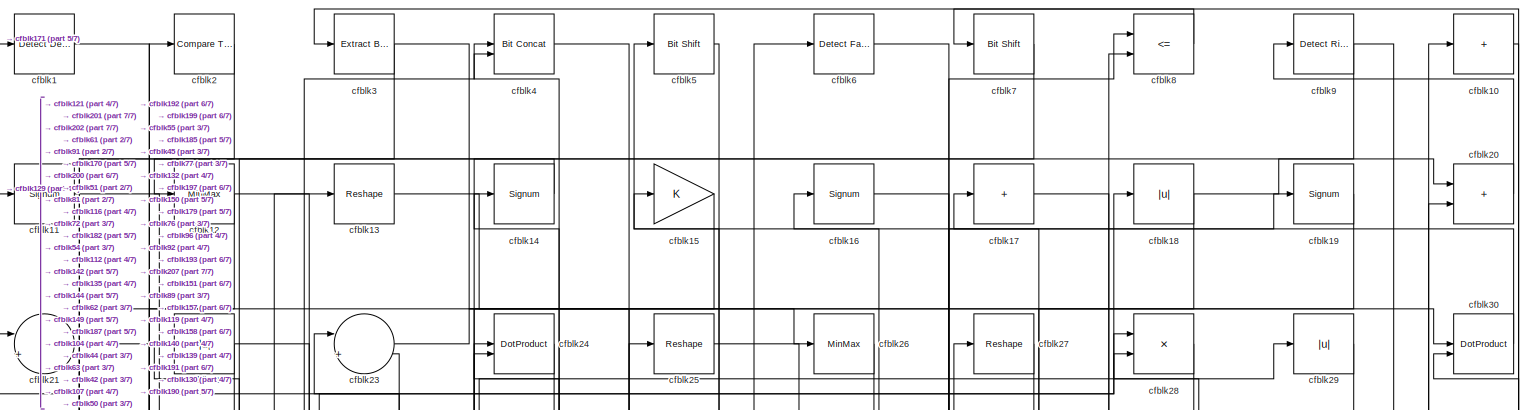
[diagram: root canvas - part 1/7, full width, top band]
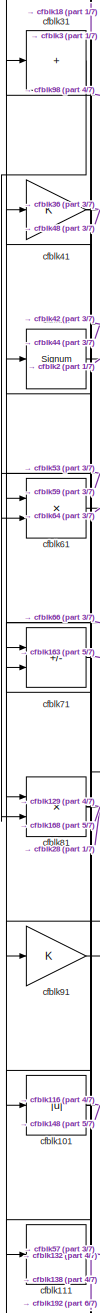
[diagram: root canvas - part 2/7, middle left region]
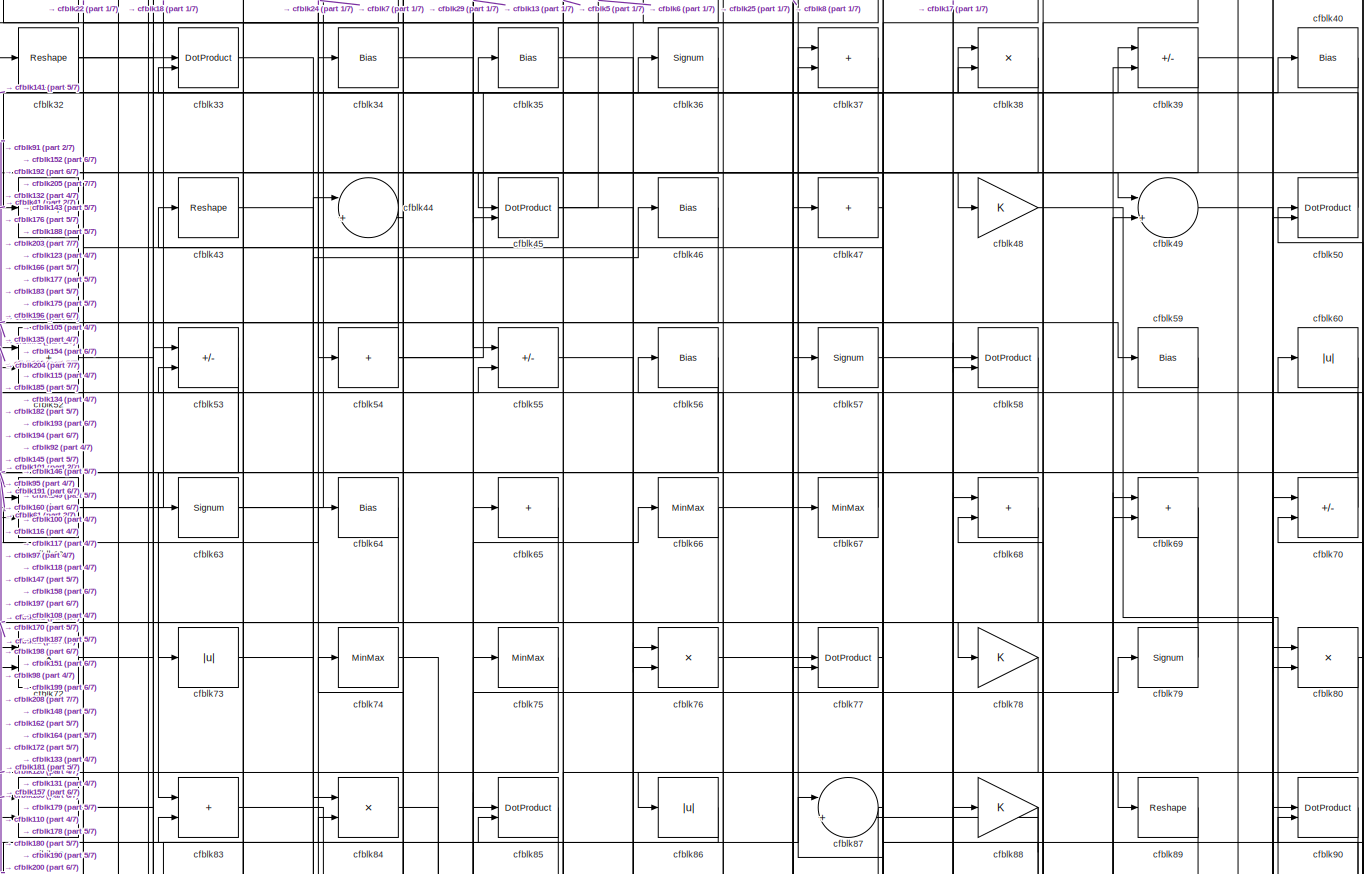
[diagram: root canvas - part 3/7, full width, top band]
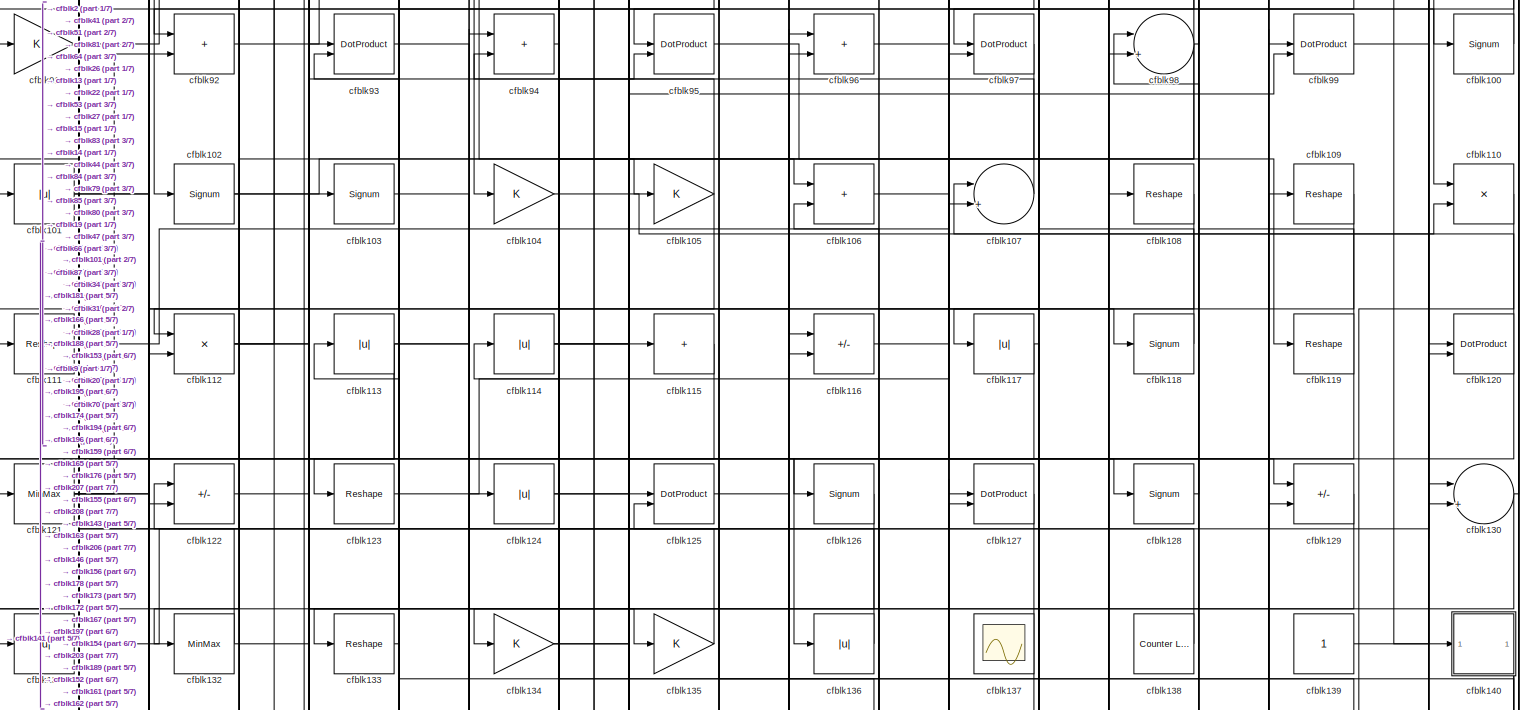
[diagram: root canvas - part 4/7, full width, middle band]
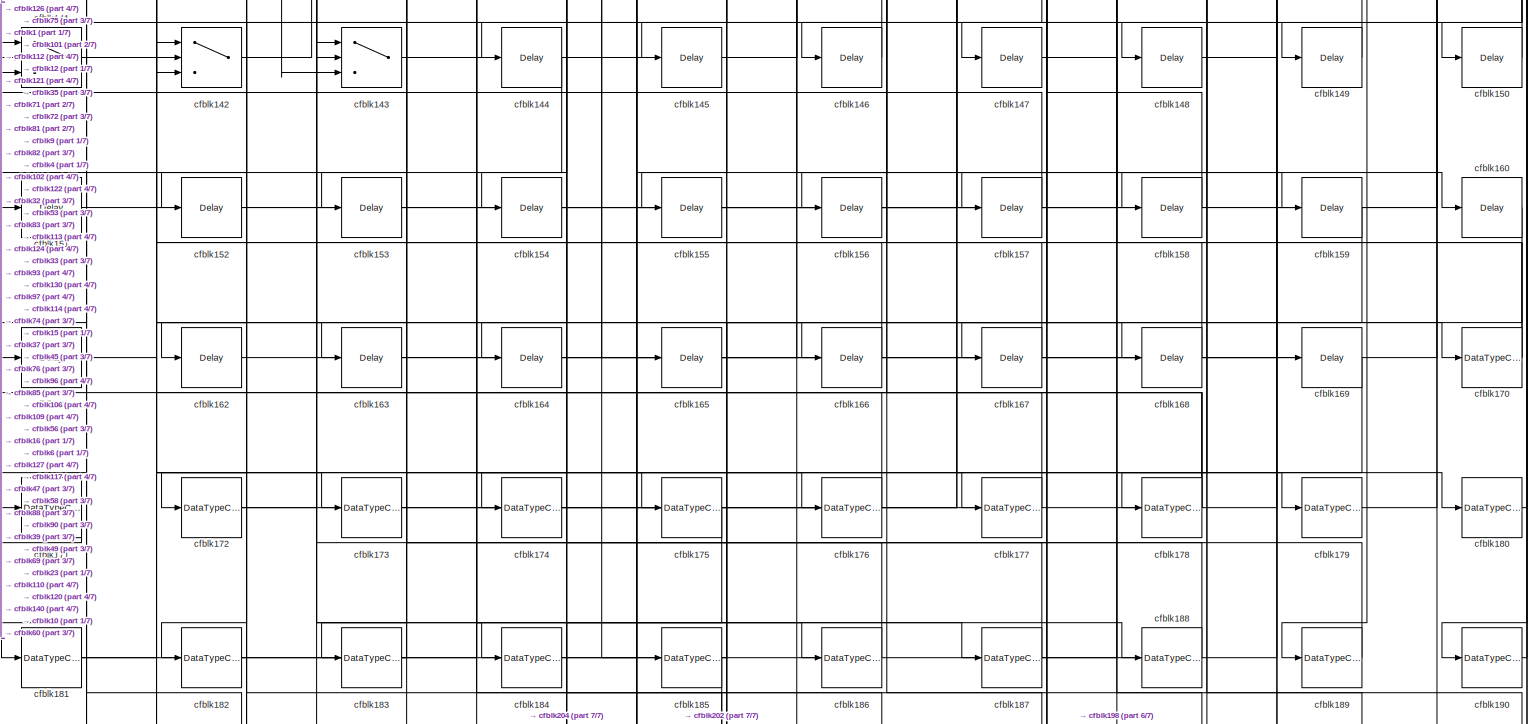
[diagram: root canvas - part 5/7, full width, bottom band]
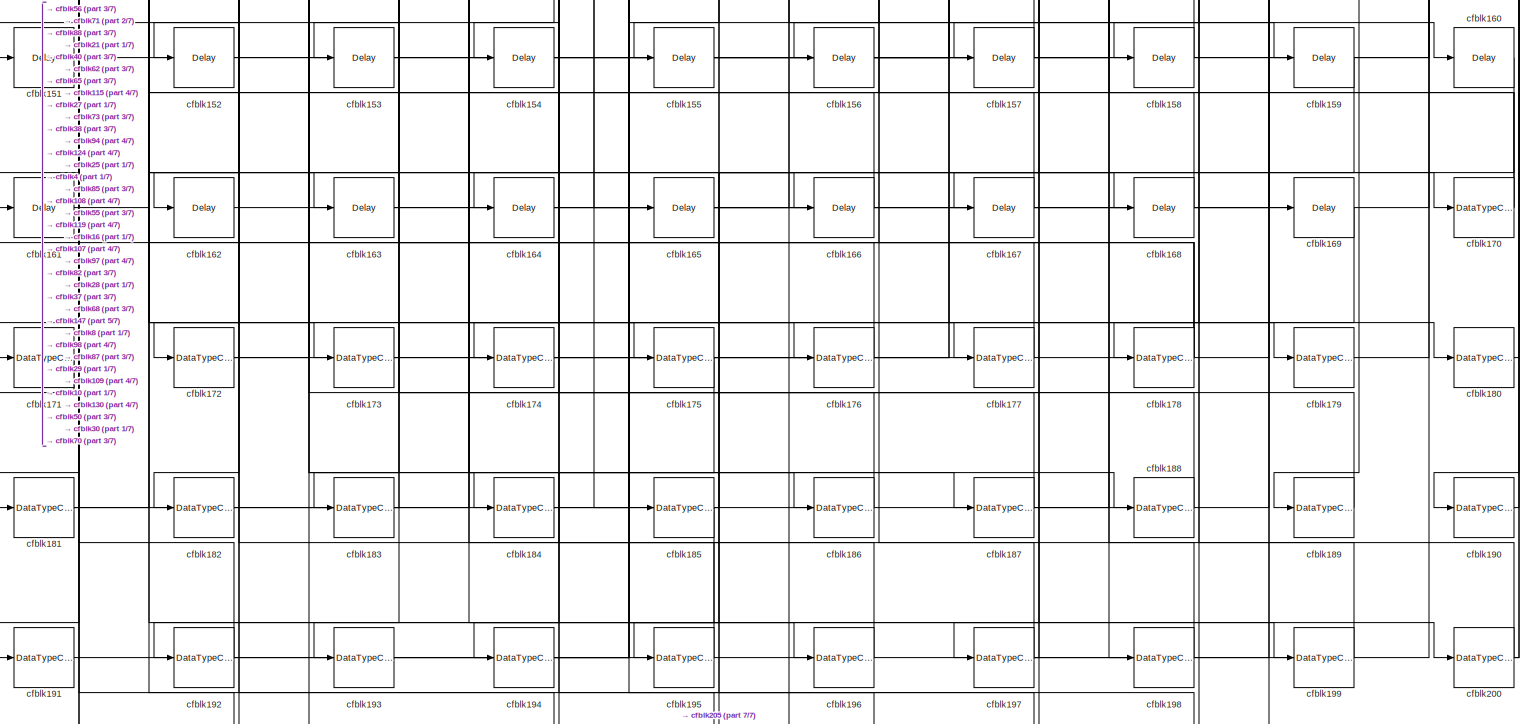
[diagram: root canvas - part 6/7, full width, bottom band]
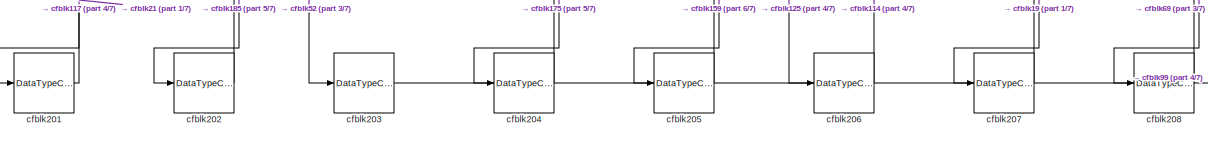
[diagram: root canvas - part 7/7, full width, bottom band]
MODEL slx_1a4f8adc5c76
KIND model
CONFIG AbsTol = auto
CONFIG EnableMultiTasking = off
CONFIG FixedStep = auto
CONFIG MaxStep = auto
CONFIG MinStep = auto
CONFIG RelTol = 1e-3
CONFIG SampleTimeConstraint = Unconstrained
CONFIG SolverName = VariableStepAuto
CONFIG StartTime = 0.0
CONFIG StopTime = 10.0
BLOCK [Reference] cfblk1  REF=simulink/Logic and Bit
Operations/Detect
Decrease
  LibrarySourceBlock = hdlsllib/Logic and Bit\nOperations/Detect\nDecrease
  SourceBlock = simulink/Logic and Bit\nOperations/Detect\nDecrease
  SourceType = Detect Decrease
BLOCK [Sum] cfblk10
  IconShape = rectangular
  Inputs = +
BLOCK [Signum] cfblk100
BLOCK [Abs] cfblk101
  SaturateOnIntegerOverflow = off
BLOCK [Signum] cfblk102
BLOCK [Signum] cfblk103
BLOCK [Gain] cfblk104
BLOCK [Gain] cfblk105
BLOCK [Sum] cfblk106
  IconShape = rectangular
BLOCK [Sum] cfblk107
  Inputs = |++
BLOCK [Reshape] cfblk108
BLOCK [Reshape] cfblk109
BLOCK [Signum] cfblk11
BLOCK [Product] cfblk110
  Inputs = */
  RndMeth = Zero
  SaturateOnIntegerOverflow = on
BLOCK [Reshape] cfblk111
BLOCK [Product] cfblk112
  Inputs = */
  RndMeth = Zero
  SaturateOnIntegerOverflow = on
BLOCK [Abs] cfblk113
  SaturateOnIntegerOverflow = off
BLOCK [Abs] cfblk114
  SaturateOnIntegerOverflow = off
BLOCK [Sum] cfblk115
  IconShape = rectangular
  Inputs = +
BLOCK [Sum] cfblk116
  IconShape = rectangular
  Inputs = +-
BLOCK [Abs] cfblk117
  SaturateOnIntegerOverflow = off
BLOCK [Signum] cfblk118
BLOCK [Reshape] cfblk119
BLOCK [MinMax] cfblk12
BLOCK [DotProduct] cfblk120
  OutDataTypeStr = Inherit: Inherit via internal rule
BLOCK [MinMax] cfblk121
BLOCK [Sum] cfblk122
  IconShape = rectangular
  Inputs = +-
BLOCK [Reshape] cfblk123
BLOCK [Abs] cfblk124
  SaturateOnIntegerOverflow = off
BLOCK [DotProduct] cfblk125
  OutDataTypeStr = Inherit: Inherit via internal rule
BLOCK [Signum] cfblk126
BLOCK [DotProduct] cfblk127
  OutDataTypeStr = Inherit: Inherit via internal rule
BLOCK [Signum] cfblk128
BLOCK [Sum] cfblk129
  IconShape = rectangular
  Inputs = +-
BLOCK [Reshape] cfblk13
BLOCK [Sum] cfblk130
  Inputs = |++
BLOCK [Abs] cfblk131
  SaturateOnIntegerOverflow = off
BLOCK [MinMax] cfblk132
BLOCK [Reshape] cfblk133
BLOCK [Gain] cfblk134
BLOCK [Gain] cfblk135
BLOCK [Abs] cfblk136
  SaturateOnIntegerOverflow = off
BLOCK [Scope] cfblk137
  Floating = on
  NumInputPorts = 1
  ScopeSpecificationString = Simulink.scopes.TimeScopeBlockCfg('CurrentConfiguration', extmgr.ConfigurationSet(extmgr.Configuration('Core','General UI',true,'FigureColor',[0.156862745098039 0.156862745098039 0.156862745098039]),extmgr.Configuration('Core','Source UI',true),extmgr.Configuration('Sources','WiredSimulink',true,'DataLoggingVariableName','ScopeData1','DataLoggingSaveFormat','StructureWithTime','DataLoggingLimitDat...<+2713ch>
BLOCK [Reference] cfblk138  REF=hdlsllib/Sources/Counter
Limited
  SourceBlock = hdlsllib/Sources/Counter\nLimited
  SourceType = Counter Limited
BLOCK [Constant] cfblk139
  SampleTime = -1
BLOCK [Signum] cfblk14
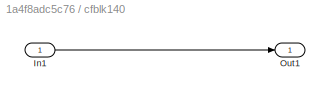
BLOCK [SubSystem] cfblk140
  LibrarySourceBlock = hdlsllib/Ports &\nSubsystems/Subsystem
BLOCK [Inport] cfblk140/In1
BLOCK [Outport] cfblk140/Out1
BLOCK [Switch] cfblk141
  InputSameDT = off
  SaturateOnIntegerOverflow = off
BLOCK [Switch] cfblk142
  InputSameDT = off
  SaturateOnIntegerOverflow = off
BLOCK [Switch] cfblk143
  InputSameDT = off
  SaturateOnIntegerOverflow = off
BLOCK [Delay] cfblk144
  InputPortMap = u0
  SampleTime = 1
BLOCK [Delay] cfblk145
  InputPortMap = u0
  SampleTime = 1
BLOCK [Delay] cfblk146
  InputPortMap = u0
  SampleTime = 1
BLOCK [Delay] cfblk147
  InputPortMap = u0
  SampleTime = 1
BLOCK [Delay] cfblk148
  InputPortMap = u0
  SampleTime = 1
BLOCK [Delay] cfblk149
  InputPortMap = u0
  SampleTime = 1
BLOCK [Gain] cfblk15
BLOCK [Delay] cfblk150
  InputPortMap = u0
  SampleTime = 1
BLOCK [Delay] cfblk151
  InputPortMap = u0
  SampleTime = 1
BLOCK [Delay] cfblk152
  InputPortMap = u0
  SampleTime = 1
BLOCK [Delay] cfblk153
  InputPortMap = u0
  SampleTime = 1
BLOCK [Delay] cfblk154
  InputPortMap = u0
  SampleTime = 1
BLOCK [Delay] cfblk155
  InputPortMap = u0
  SampleTime = 1
BLOCK [Delay] cfblk156
  InputPortMap = u0
  SampleTime = 1
BLOCK [Delay] cfblk157
  InputPortMap = u0
  SampleTime = 1
BLOCK [Delay] cfblk158
  InputPortMap = u0
  SampleTime = 1
BLOCK [Delay] cfblk159
  InputPortMap = u0
  SampleTime = 1
BLOCK [Signum] cfblk16
BLOCK [Delay] cfblk160
  InputPortMap = u0
  SampleTime = 1
BLOCK [Delay] cfblk161
  InputPortMap = u0
  SampleTime = 1
BLOCK [Delay] cfblk162
  InputPortMap = u0
  SampleTime = 1
BLOCK [Delay] cfblk163
  InputPortMap = u0
  SampleTime = 1
BLOCK [Delay] cfblk164
  InputPortMap = u0
  SampleTime = 1
BLOCK [Delay] cfblk165
  InputPortMap = u0
  SampleTime = 1
BLOCK [Delay] cfblk166
  InputPortMap = u0
  SampleTime = 1
BLOCK [Delay] cfblk167
  InputPortMap = u0
  SampleTime = 1
BLOCK [Delay] cfblk168
  InputPortMap = u0
  SampleTime = 1
BLOCK [Delay] cfblk169
  InputPortMap = u0
  SampleTime = 1
BLOCK [Sum] cfblk17
  IconShape = rectangular
  Inputs = +
BLOCK [DataTypeConversion] cfblk170
  RndMeth = Floor
  SaturateOnIntegerOverflow = off
BLOCK [DataTypeConversion] cfblk171
  OutDataTypeStr = uint8
  RndMeth = Floor
  SaturateOnIntegerOverflow = off
BLOCK [DataTypeConversion] cfblk172
  RndMeth = Floor
  SaturateOnIntegerOverflow = off
BLOCK [DataTypeConversion] cfblk173
  OutDataTypeStr = uint8
  RndMeth = Floor
  SaturateOnIntegerOverflow = off
BLOCK [DataTypeConversion] cfblk174
  OutDataTypeStr = uint8
  RndMeth = Floor
  SaturateOnIntegerOverflow = off
BLOCK [DataTypeConversion] cfblk175
  OutDataTypeStr = uint8
  RndMeth = Floor
  SaturateOnIntegerOverflow = off
BLOCK [DataTypeConversion] cfblk176
  OutDataTypeStr = uint8
  RndMeth = Floor
  SaturateOnIntegerOverflow = off
BLOCK [DataTypeConversion] cfblk177
  OutDataTypeStr = uint8
  RndMeth = Floor
  SaturateOnIntegerOverflow = off
BLOCK [DataTypeConversion] cfblk178
  RndMeth = Floor
  SaturateOnIntegerOverflow = off
BLOCK [DataTypeConversion] cfblk179
  OutDataTypeStr = uint8
  RndMeth = Floor
  SaturateOnIntegerOverflow = off
BLOCK [Abs] cfblk18
  SaturateOnIntegerOverflow = off
BLOCK [DataTypeConversion] cfblk180
  OutDataTypeStr = uint8
  RndMeth = Floor
  SaturateOnIntegerOverflow = off
BLOCK [DataTypeConversion] cfblk181
  RndMeth = Floor
  SaturateOnIntegerOverflow = off
BLOCK [DataTypeConversion] cfblk182
  OutDataTypeStr = uint8
  RndMeth = Floor
  SaturateOnIntegerOverflow = off
BLOCK [DataTypeConversion] cfblk183
  OutDataTypeStr = uint8
  RndMeth = Floor
  SaturateOnIntegerOverflow = off
BLOCK [DataTypeConversion] cfblk184
  OutDataTypeStr = uint8
  RndMeth = Floor
  SaturateOnIntegerOverflow = off
BLOCK [DataTypeConversion] cfblk185
  RndMeth = Floor
  SaturateOnIntegerOverflow = off
BLOCK [DataTypeConversion] cfblk186
  OutDataTypeStr = uint8
  RndMeth = Floor
  SaturateOnIntegerOverflow = off
BLOCK [DataTypeConversion] cfblk187
  RndMeth = Floor
  SaturateOnIntegerOverflow = off
BLOCK [DataTypeConversion] cfblk188
  OutDataTypeStr = uint8
  RndMeth = Floor
  SaturateOnIntegerOverflow = off
BLOCK [DataTypeConversion] cfblk189
  OutDataTypeStr = uint8
  RndMeth = Floor
  SaturateOnIntegerOverflow = off
BLOCK [Signum] cfblk19
BLOCK [DataTypeConversion] cfblk190
  OutDataTypeStr = uint8
  RndMeth = Floor
  SaturateOnIntegerOverflow = off
BLOCK [DataTypeConversion] cfblk191
  OutDataTypeStr = uint8
  RndMeth = Floor
  SaturateOnIntegerOverflow = off
BLOCK [DataTypeConversion] cfblk192
  RndMeth = Floor
  SaturateOnIntegerOverflow = off
BLOCK [DataTypeConversion] cfblk193
  OutDataTypeStr = uint8
  RndMeth = Floor
  SaturateOnIntegerOverflow = off
BLOCK [DataTypeConversion] cfblk194
  OutDataTypeStr = uint8
  RndMeth = Floor
  SaturateOnIntegerOverflow = off
BLOCK [DataTypeConversion] cfblk195
  OutDataTypeStr = uint8
  RndMeth = Floor
  SaturateOnIntegerOverflow = off
BLOCK [DataTypeConversion] cfblk196
  OutDataTypeStr = uint8
  RndMeth = Floor
  SaturateOnIntegerOverflow = off
BLOCK [DataTypeConversion] cfblk197
  RndMeth = Floor
  SaturateOnIntegerOverflow = off
BLOCK [DataTypeConversion] cfblk198
  OutDataTypeStr = uint8
  RndMeth = Floor
  SaturateOnIntegerOverflow = off
BLOCK [DataTypeConversion] cfblk199
  OutDataTypeStr = uint8
  RndMeth = Floor
  SaturateOnIntegerOverflow = off
BLOCK [Reference] cfblk2  REF=hdlsllib/Logic and Bit
Operations/Compare
To Constant
  SourceBlock = hdlsllib/Logic and Bit\nOperations/Compare\nTo Constant
  SourceType = Compare To Constant
BLOCK [Sum] cfblk20
  IconShape = rectangular
BLOCK [DataTypeConversion] cfblk200
  RndMeth = Floor
  SaturateOnIntegerOverflow = off
BLOCK [DataTypeConversion] cfblk201
  OutDataTypeStr = uint8
  RndMeth = Floor
  SaturateOnIntegerOverflow = off
BLOCK [DataTypeConversion] cfblk202
  OutDataTypeStr = uint8
  RndMeth = Floor
  SaturateOnIntegerOverflow = off
BLOCK [DataTypeConversion] cfblk203
  OutDataTypeStr = uint8
  RndMeth = Floor
  SaturateOnIntegerOverflow = off
BLOCK [DataTypeConversion] cfblk204
  OutDataTypeStr = uint8
  RndMeth = Floor
  SaturateOnIntegerOverflow = off
BLOCK [DataTypeConversion] cfblk205
  OutDataTypeStr = uint8
  RndMeth = Floor
  SaturateOnIntegerOverflow = off
BLOCK [DataTypeConversion] cfblk206
  OutDataTypeStr = uint8
  RndMeth = Floor
  SaturateOnIntegerOverflow = off
BLOCK [DataTypeConversion] cfblk207
  OutDataTypeStr = uint8
  RndMeth = Floor
  SaturateOnIntegerOverflow = off
BLOCK [DataTypeConversion] cfblk208
  OutDataTypeStr = uint8
  RndMeth = Floor
  SaturateOnIntegerOverflow = off
BLOCK [Sum] cfblk21
  Inputs = |++
BLOCK [Abs] cfblk22
  SaturateOnIntegerOverflow = off
BLOCK [Sum] cfblk23
  Inputs = |++
BLOCK [DotProduct] cfblk24
  OutDataTypeStr = Inherit: Inherit via internal rule
BLOCK [Reshape] cfblk25
BLOCK [MinMax] cfblk26
BLOCK [Reshape] cfblk27
BLOCK [Product] cfblk28
  Inputs = */
  RndMeth = Zero
  SaturateOnIntegerOverflow = on
BLOCK [Abs] cfblk29
  SaturateOnIntegerOverflow = off
BLOCK [Reference] cfblk3  REF=simulink/Logic and Bit
Operations/Extract Bits
  LibrarySourceBlock = hdlsllib/Logic and Bit\nOperations/Extract Bits
  SourceBlock = simulink/Logic and Bit\nOperations/Extract Bits
  SourceType = Extract Bits
BLOCK [DotProduct] cfblk30
  OutDataTypeStr = Inherit: Inherit via internal rule
BLOCK [Sum] cfblk31
  IconShape = rectangular
  Inputs = +
BLOCK [Reshape] cfblk32
BLOCK [DotProduct] cfblk33
  OutDataTypeStr = Inherit: Inherit via internal rule
BLOCK [Bias] cfblk34
  Bias = 0.0
  SaturateOnIntegerOverflow = off
BLOCK [Bias] cfblk35
  Bias = 0.0
  SaturateOnIntegerOverflow = off
BLOCK [Signum] cfblk36
BLOCK [Sum] cfblk37
  IconShape = rectangular
BLOCK [Product] cfblk38
  Inputs = */
  RndMeth = Zero
  SaturateOnIntegerOverflow = on
BLOCK [Sum] cfblk39
  IconShape = rectangular
  Inputs = +-
BLOCK [Reference] cfblk4  REF=hdlsllib/Logic and Bit
Operations/Bit Concat
  SourceBlock = hdlsllib/Logic and Bit\nOperations/Bit Concat
  SourceType = Bit Concat
BLOCK [Bias] cfblk40
  Bias = 0.0
  SaturateOnIntegerOverflow = off
BLOCK [Gain] cfblk41
BLOCK [Reshape] cfblk42
BLOCK [Reshape] cfblk43
BLOCK [Sum] cfblk44
  Inputs = |++
BLOCK [DotProduct] cfblk45
  OutDataTypeStr = Inherit: Inherit via internal rule
BLOCK [Bias] cfblk46
  Bias = 0.0
  SaturateOnIntegerOverflow = off
BLOCK [Sum] cfblk47
  IconShape = rectangular
  Inputs = +
BLOCK [Gain] cfblk48
BLOCK [Sum] cfblk49
  Inputs = |++
BLOCK [Reference] cfblk5  REF=hdlsllib/Logic and Bit
Operations/Bit Shift
  SourceBlock = hdlsllib/Logic and Bit\nOperations/Bit Shift
  SourceType = Bit Shift
BLOCK [DotProduct] cfblk50
  OutDataTypeStr = Inherit: Inherit via internal rule
BLOCK [Signum] cfblk51
BLOCK [Sum] cfblk52
  IconShape = rectangular
BLOCK [Sum] cfblk53
  IconShape = rectangular
  Inputs = +-
BLOCK [Sum] cfblk54
  IconShape = rectangular
  Inputs = +
BLOCK [Sum] cfblk55
  IconShape = rectangular
  Inputs = +-
BLOCK [Bias] cfblk56
  Bias = 0.0
  SaturateOnIntegerOverflow = off
BLOCK [Signum] cfblk57
BLOCK [DotProduct] cfblk58
  OutDataTypeStr = Inherit: Inherit via internal rule
BLOCK [Bias] cfblk59
  Bias = 0.0
  SaturateOnIntegerOverflow = off
BLOCK [Reference] cfblk6  REF=hdlsllib/Logic and Bit
Operations/Detect Fall
Nonpositive
  SourceBlock = hdlsllib/Logic and Bit\nOperations/Detect Fall\nNonpositive
  SourceType = Detect Fall Nonpositive
BLOCK [Abs] cfblk60
  SaturateOnIntegerOverflow = off
BLOCK [Product] cfblk61
  Inputs = */
  RndMeth = Zero
  SaturateOnIntegerOverflow = on
BLOCK [Sum] cfblk62
  IconShape = rectangular
  Inputs = +-
BLOCK [Signum] cfblk63
BLOCK [Bias] cfblk64
  Bias = 0.0
  SaturateOnIntegerOverflow = off
BLOCK [Sum] cfblk65
  IconShape = rectangular
  Inputs = +
BLOCK [MinMax] cfblk66
BLOCK [MinMax] cfblk67
BLOCK [Sum] cfblk68
  IconShape = rectangular
BLOCK [Sum] cfblk69
  IconShape = rectangular
BLOCK [Reference] cfblk7  REF=hdlsllib/Logic and Bit
Operations/Bit Shift
  SourceBlock = hdlsllib/Logic and Bit\nOperations/Bit Shift
  SourceType = Bit Shift
BLOCK [Sum] cfblk70
  IconShape = rectangular
  Inputs = +-
BLOCK [Sum] cfblk71
  IconShape = rectangular
  Inputs = +-
BLOCK [Product] cfblk72
  Inputs = */
  RndMeth = Zero
  SaturateOnIntegerOverflow = on
BLOCK [Abs] cfblk73
  SaturateOnIntegerOverflow = off
BLOCK [MinMax] cfblk74
BLOCK [MinMax] cfblk75
BLOCK [Product] cfblk76
  Inputs = */
  RndMeth = Zero
  SaturateOnIntegerOverflow = on
BLOCK [DotProduct] cfblk77
  OutDataTypeStr = Inherit: Inherit via internal rule
BLOCK [Gain] cfblk78
BLOCK [Signum] cfblk79
BLOCK [RelationalOperator] cfblk8
  InputSameDT = off
  Operator = <=
  OutDataTypeStr = boolean
BLOCK [Product] cfblk80
  Inputs = */
  RndMeth = Zero
  SaturateOnIntegerOverflow = on
BLOCK [Product] cfblk81
  Inputs = */
  RndMeth = Zero
  SaturateOnIntegerOverflow = on
BLOCK [Product] cfblk82
  Inputs = */
  RndMeth = Zero
  SaturateOnIntegerOverflow = on
BLOCK [Sum] cfblk83
  IconShape = rectangular
BLOCK [Product] cfblk84
  Inputs = */
  RndMeth = Zero
  SaturateOnIntegerOverflow = on
BLOCK [DotProduct] cfblk85
  OutDataTypeStr = Inherit: Inherit via internal rule
BLOCK [Abs] cfblk86
  SaturateOnIntegerOverflow = off
BLOCK [Sum] cfblk87
  Inputs = |++
BLOCK [Gain] cfblk88
BLOCK [Reshape] cfblk89
BLOCK [Reference] cfblk9  REF=hdlsllib/Logic and Bit
Operations/Detect Rise
Positive
  SourceBlock = hdlsllib/Logic and Bit\nOperations/Detect Rise\nPositive
  SourceType = Detect Rise Positive
BLOCK [DotProduct] cfblk90
  OutDataTypeStr = Inherit: Inherit via internal rule
BLOCK [Gain] cfblk91
BLOCK [Sum] cfblk92
  IconShape = rectangular
BLOCK [DotProduct] cfblk93
  OutDataTypeStr = Inherit: Inherit via internal rule
BLOCK [Sum] cfblk94
  IconShape = rectangular
BLOCK [DotProduct] cfblk95
  OutDataTypeStr = Inherit: Inherit via internal rule
BLOCK [Sum] cfblk96
  IconShape = rectangular
BLOCK [DotProduct] cfblk97
  OutDataTypeStr = Inherit: Inherit via internal rule
BLOCK [Sum] cfblk98
  Inputs = |++
BLOCK [DotProduct] cfblk99
  OutDataTypeStr = Inherit: Inherit via internal rule
LINE cfblk100:1 -> cfblk43:1
NET cfblk101:1 -> cfblk116:2, cfblk148:1
NET cfblk102:1 -> cfblk106:1, cfblk184:1
LINE cfblk103:1 -> cfblk129:1
LINE cfblk104:1 -> cfblk110:2
NET cfblk105:1 -> cfblk122:2, cfblk44:2
LINE cfblk106:1 -> cfblk128:1
LINE cfblk107:1 -> cfblk14:1
LINE cfblk108:1 -> cfblk155:1
LINE cfblk109:1 -> cfblk146:1
LINE cfblk10:1 -> cfblk190:1
LINE cfblk110:1 -> cfblk189:1
LINE cfblk111:1 -> cfblk57:1
NET cfblk112:1 -> cfblk103:1, cfblk13:1, cfblk95:2
NET cfblk113:1 -> cfblk118:1, cfblk131:1, cfblk141:3, cfblk186:1
NET cfblk114:1 -> cfblk165:1, cfblk176:1, cfblk99:2
LINE cfblk115:1 -> cfblk153:1
LINE cfblk116:1 -> cfblk47:1
NET cfblk117:1 -> cfblk167:1, cfblk201:1
LINE cfblk118:1 -> cfblk34:1
NET cfblk119:1 -> cfblk156:1, cfblk28:2
LINE cfblk11:1 -> cfblk116:1
NET cfblk120:1 -> cfblk107:1, cfblk136:1
NET cfblk121:1 -> cfblk177:1, cfblk180:1, cfblk92:2
LINE cfblk122:1 -> cfblk166:1
LINE cfblk123:1 -> cfblk67:1
NET cfblk124:1 -> cfblk126:1, cfblk159:1
LINE cfblk125:1 -> cfblk206:1
LINE cfblk126:1 -> cfblk141:1
LINE cfblk127:1 -> cfblk172:1
LINE cfblk128:1 -> cfblk98:1
LINE cfblk129:1 -> cfblk11:1
NET cfblk12:1 -> cfblk142:3, cfblk144:1
NET cfblk130:1 -> cfblk164:1, cfblk7:1
LINE cfblk131:1 -> cfblk70:1
NET cfblk132:1 -> cfblk41:1, cfblk53:1
LINE cfblk133:1 -> cfblk113:1
NET cfblk134:1 -> cfblk66:1, cfblk79:1
LINE cfblk135:1 -> cfblk84:2
LINE cfblk136:1 -> cfblk122:1
LINE cfblk138:1 -> cfblk51:1
LINE cfblk139:1 -> cfblk20:2
LINE cfblk13:1 -> cfblk55:1
LINE cfblk140/In1:1 -> cfblk140/Out1:1
NET cfblk140:1 -> cfblk161:1, cfblk162:1
LINE cfblk141:1 -> cfblk35:1
LINE cfblk142:1 -> cfblk4:1
LINE cfblk143:1 -> cfblk96:2
LINE cfblk144:1 -> cfblk171:1
LINE cfblk145:1 -> cfblk76:1
LINE cfblk146:1 -> cfblk85:2
LINE cfblk147:1 -> cfblk198:1
LINE cfblk148:1 -> cfblk49:2
LINE cfblk149:1 -> cfblk23:2
LINE cfblk14:1 -> cfblk12:1
LINE cfblk150:1 -> cfblk4:2
LINE cfblk151:1 -> cfblk8:2
LINE cfblk152:1 -> cfblk130:1
LINE cfblk153:1 -> cfblk107:2
LINE cfblk154:1 -> cfblk98:2
LINE cfblk155:1 -> cfblk50:2
LINE cfblk156:1 -> cfblk97:2
LINE cfblk157:1 -> cfblk82:1
LINE cfblk158:1 -> cfblk87:1
LINE cfblk159:1 -> cfblk205:1
LINE cfblk15:1 -> cfblk104:1
LINE cfblk160:1 -> cfblk195:1
LINE cfblk161:1 -> cfblk173:1
LINE cfblk162:1 -> cfblk39:2
LINE cfblk163:1 -> cfblk96:1
LINE cfblk164:1 -> cfblk69:2
LINE cfblk165:1 -> cfblk120:2
LINE cfblk166:1 -> cfblk83:2
LINE cfblk167:1 -> cfblk142:1
LINE cfblk168:1 -> cfblk142:2
LINE cfblk169:1 -> cfblk183:1
LINE cfblk16:1 -> cfblk179:1
NET cfblk170:1 -> cfblk56:1, cfblk58:1
LINE cfblk171:1 -> cfblk1:1
NET cfblk172:1 -> cfblk143:2, cfblk69:1
LINE cfblk173:1 -> cfblk127:1
LINE cfblk174:1 -> cfblk127:2
LINE cfblk175:1 -> cfblk204:1
LINE cfblk176:1 -> cfblk33:1
LINE cfblk177:1 -> cfblk33:2
NET cfblk178:1 -> cfblk106:2, cfblk141:2, cfblk72:1
LINE cfblk179:1 -> cfblk90:1
LINE cfblk17:1 -> cfblk89:1
LINE cfblk180:1 -> cfblk90:2
NET cfblk181:1 -> cfblk112:2, cfblk124:1
LINE cfblk182:1 -> cfblk75:1
LINE cfblk183:1 -> cfblk53:2
LINE cfblk184:1 -> cfblk169:1
NET cfblk185:1 -> cfblk15:1, cfblk202:1
LINE cfblk186:1 -> cfblk74:1
NET cfblk187:1 -> cfblk23:1, cfblk88:1
LINE cfblk188:1 -> cfblk93:1
LINE cfblk189:1 -> cfblk93:2
NET cfblk18:1 -> cfblk20:1, cfblk91:1
LINE cfblk190:1 -> cfblk60:1
LINE cfblk191:1 -> cfblk10:1
NET cfblk192:1 -> cfblk25:1, cfblk71:2
LINE cfblk193:1 -> cfblk65:1
LINE cfblk194:1 -> cfblk85:1
LINE cfblk195:1 -> cfblk94:1
LINE cfblk196:1 -> cfblk94:2
NET cfblk197:1 -> cfblk109:1, cfblk16:1, cfblk37:2
LINE cfblk198:1 -> cfblk68:1
LINE cfblk199:1 -> cfblk68:2
LINE cfblk19:1 -> cfblk207:1
LINE cfblk1:1 -> cfblk170:1
NET cfblk200:1 -> cfblk30:2, cfblk62:2, cfblk70:2
LINE cfblk201:1 -> cfblk21:1
LINE cfblk202:1 -> cfblk21:2
LINE cfblk203:1 -> cfblk99:1
LINE cfblk204:1 -> cfblk52:1
LINE cfblk205:1 -> cfblk52:2
LINE cfblk206:1 -> cfblk114:1
LINE cfblk207:1 -> cfblk125:1
LINE cfblk208:1 -> cfblk125:2
LINE cfblk20:1 -> cfblk9:1
LINE cfblk21:1 -> cfblk200:1
NET cfblk22:1 -> cfblk135:1, cfblk72:2
LINE cfblk23:1 -> cfblk30:1
LINE cfblk24:1 -> cfblk42:1
LINE cfblk25:1 -> cfblk77:1
LINE cfblk26:1 -> cfblk132:1
LINE cfblk27:1 -> cfblk193:1
LINE cfblk28:1 -> cfblk157:1
LINE cfblk29:1 -> cfblk158:1
LINE cfblk2:1 -> cfblk121:1
LINE cfblk30:1 -> cfblk5:1
LINE cfblk31:1 -> cfblk81:2
NET cfblk32:1 -> cfblk143:1, cfblk58:2
LINE cfblk33:1 -> cfblk175:1
LINE cfblk34:1 -> cfblk49:1
LINE cfblk35:1 -> cfblk59:1
LINE cfblk36:1 -> cfblk45:2
LINE cfblk37:1 -> cfblk145:1
LINE cfblk38:1 -> cfblk154:1
NET cfblk39:1 -> cfblk63:1, cfblk80:1
NET cfblk3:1 -> cfblk26:1, cfblk61:1
LINE cfblk40:1 -> cfblk152:1
NET cfblk41:1 -> cfblk36:1, cfblk48:1
LINE cfblk42:1 -> cfblk111:1
LINE cfblk43:1 -> cfblk84:1
NET cfblk44:1 -> cfblk24:1, cfblk71:1
NET cfblk45:1 -> cfblk149:1, cfblk6:1
LINE cfblk46:1 -> cfblk62:1
LINE cfblk47:1 -> cfblk147:1
LINE cfblk48:1 -> cfblk110:1
LINE cfblk49:1 -> cfblk120:1
LINE cfblk4:1 -> cfblk199:1
LINE cfblk50:1 -> cfblk24:2
LINE cfblk51:1 -> cfblk2:1
LINE cfblk52:1 -> cfblk203:1
NET cfblk53:1 -> cfblk61:2, cfblk73:1
NET cfblk54:1 -> cfblk22:1, cfblk39:1, cfblk40:1
LINE cfblk55:1 -> cfblk160:1
NET cfblk56:1 -> cfblk191:1, cfblk76:2
LINE cfblk57:1 -> cfblk108:1
LINE cfblk58:1 -> cfblk83:1
LINE cfblk59:1 -> cfblk101:1
LINE cfblk5:1 -> cfblk45:1
LINE cfblk60:1 -> cfblk77:2
LINE cfblk61:1 -> cfblk64:1
NET cfblk62:1 -> cfblk18:1, cfblk80:2
NET cfblk63:1 -> cfblk29:1, cfblk46:1
LINE cfblk64:1 -> cfblk102:1
LINE cfblk65:1 -> cfblk192:1
NET cfblk66:1 -> cfblk100:1, cfblk81:1
LINE cfblk67:1 -> cfblk32:1
LINE cfblk68:1 -> cfblk197:1
NET cfblk69:1 -> cfblk123:1, cfblk208:1
LINE cfblk6:1 -> cfblk150:1
LINE cfblk70:1 -> cfblk37:1
LINE cfblk71:1 -> cfblk163:1
LINE cfblk72:1 -> cfblk38:1
LINE cfblk73:1 -> cfblk196:1
LINE cfblk74:1 -> cfblk185:1
LINE cfblk75:1 -> cfblk181:1
LINE cfblk76:1 -> cfblk8:1
LINE cfblk77:1 -> cfblk17:1
LINE cfblk78:1 -> cfblk86:1
LINE cfblk79:1 -> cfblk78:1
LINE cfblk7:1 -> cfblk54:1
NET cfblk80:1 -> cfblk50:1, cfblk95:1
NET cfblk81:1 -> cfblk129:2, cfblk168:1, cfblk28:1
NET cfblk82:1 -> cfblk143:3, cfblk188:1, cfblk55:2
LINE cfblk83:1 -> cfblk105:1
LINE cfblk84:1 -> cfblk115:1
LINE cfblk85:1 -> cfblk92:1
LINE cfblk86:1 -> cfblk82:2
NET cfblk87:1 -> cfblk117:1, cfblk97:1
NET cfblk88:1 -> cfblk151:1, cfblk87:2
LINE cfblk89:1 -> cfblk133:1
LINE cfblk8:1 -> cfblk3:1
LINE cfblk90:1 -> cfblk178:1
LINE cfblk91:1 -> cfblk44:1
LINE cfblk92:1 -> cfblk27:1
LINE cfblk93:1 -> cfblk187:1
LINE cfblk94:1 -> cfblk194:1
LINE cfblk95:1 -> cfblk119:1
LINE cfblk96:1 -> cfblk19:1
LINE cfblk97:1 -> cfblk174:1
NET cfblk98:1 -> cfblk112:1, cfblk134:1, cfblk31:1, cfblk38:2
LINE cfblk99:1 -> cfblk130:2
NET cfblk9:1 -> cfblk140:1, cfblk182:1
note: NET lines group one-source signal fan-out (src -> all destinations, sorted); 1:1 wires keep LINE
